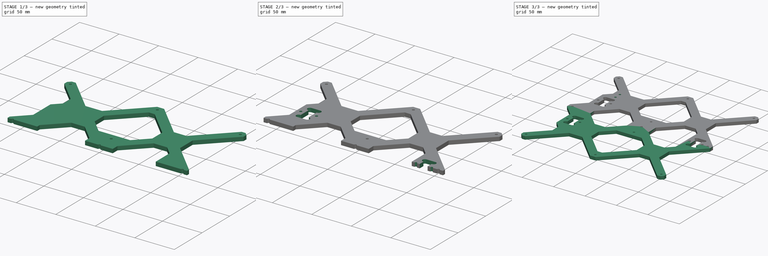
[diagram: build sequence overview — one tinted view per stage of 3, left to right]
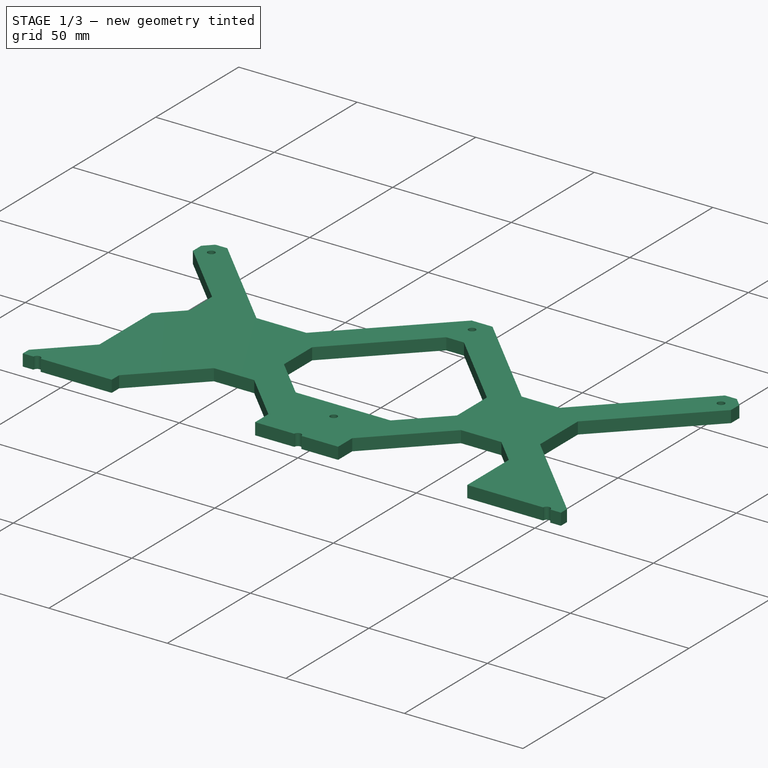
[diagram: stage 1 of 3 — iso view after this stage's code; geometry added in this stage tinted green]
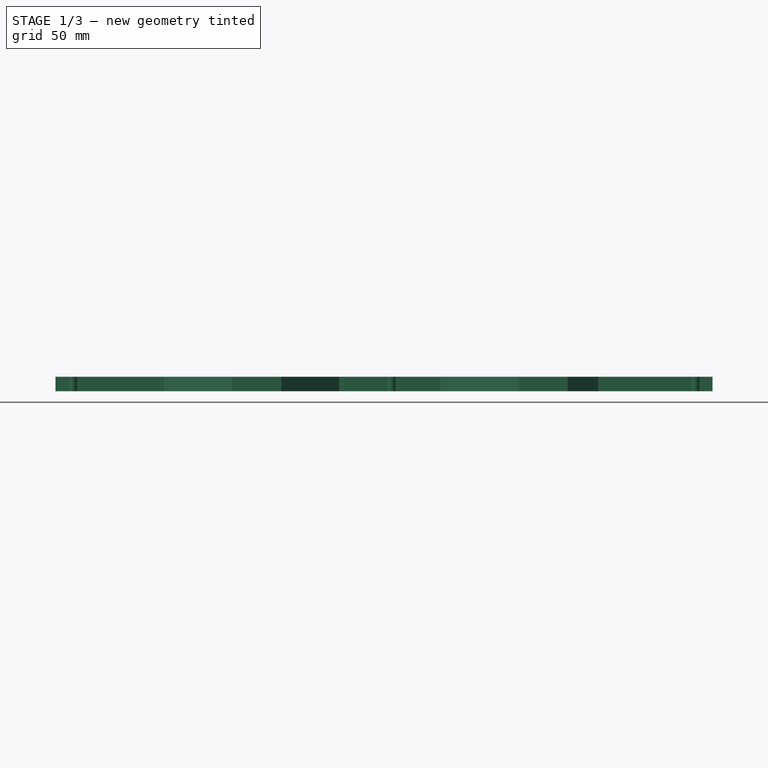
[diagram: stage 1 of 3 — front view after this stage's code; geometry added in this stage tinted green]
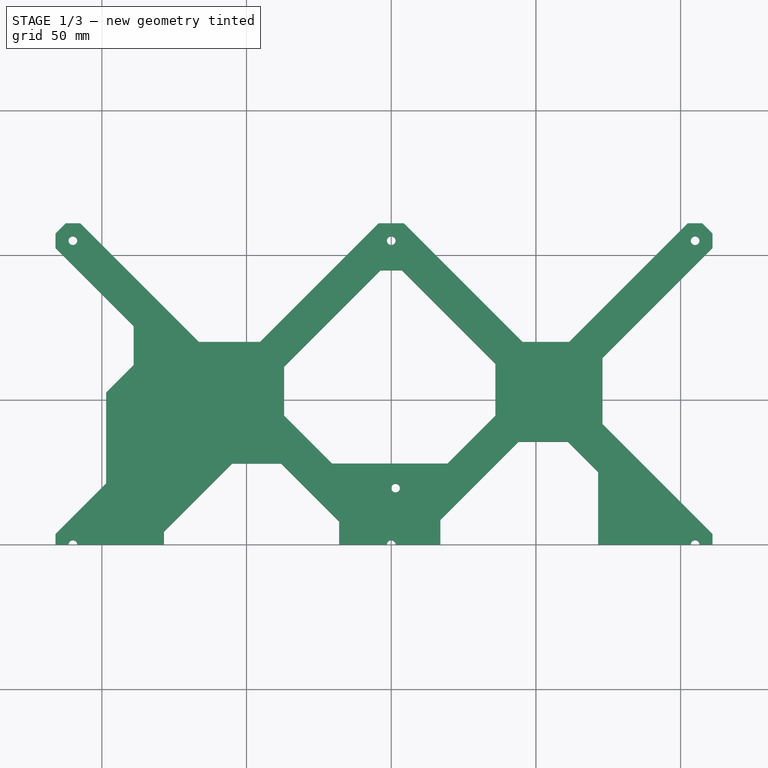
[diagram: stage 1 of 3 — top view after this stage's code; geometry added in this stage tinted green]
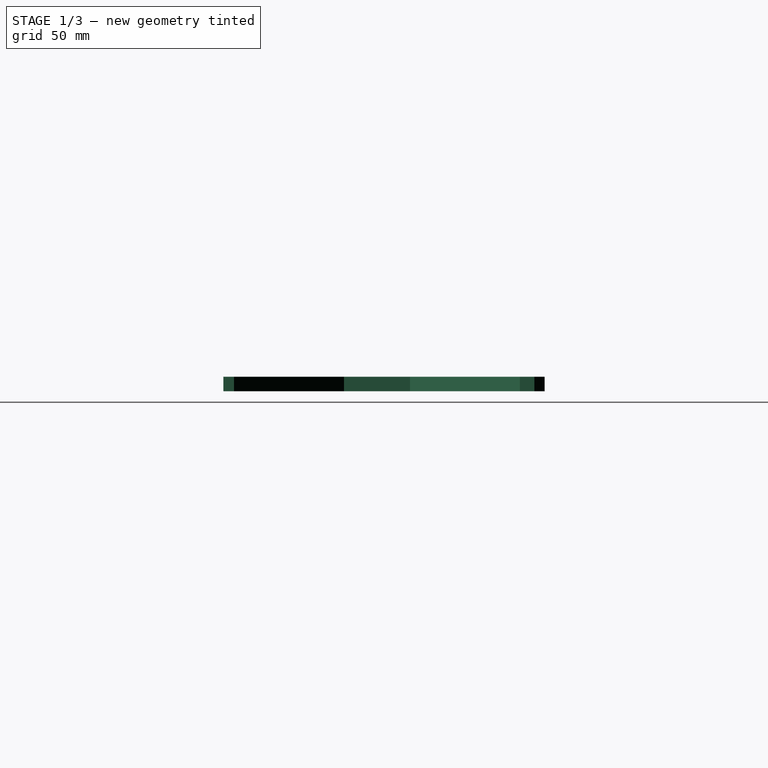
[diagram: stage 1 of 3 — right view after this stage's code; geometry added in this stage tinted green]
FCSTD DOCUMENT  (FreeCAD 0.21R33771 (Git))
Label: _MK3-Y-Carriage
License: Creative Commons Attribution 4.0
LicenseURL: https://creativecommons.org/licenses/by/4.0/
objects: Sketcher::SketchObject×4, PartDesign::Pocket×3, PartDesign::Pad×1, PartDesign::Mirrored×1, PartDesign::Body×1
note: 14 computed .brp shape members not serialized (recipe doc carries the construction recipe); baked Part::Feature solids carry a one-line shape summary decoded from their .brp

FEATURE [Sketcher::SketchObject] Sketch
  FullyConstrained = true
  MapMode = 5
  Support = -> [XY_Plane002]
  sketch-geometry (24):
    g0: LineSegment StartX=-116 StartY=0 StartZ=0 EndX=-116 EndY=3.66447 EndZ=0
    g1: LineSegment StartX=-116 StartY=3.66447 StartZ=0 EndX=-98.5 EndY=21.1645 EndZ=0
    g2: LineSegment StartX=-98.5 StartY=21.1645 StartZ=0 EndX=-98.5 EndY=52.5 EndZ=0
    g3: LineSegment StartX=-98.5 StartY=52.5 StartZ=0 EndX=-89 EndY=62 EndZ=0
    g4: LineSegment StartX=-89 StartY=62 StartZ=0 EndX=-89 EndY=75.4645 EndZ=0
    g5: LineSegment StartX=-89 StartY=75.4645 StartZ=0 EndX=-116 EndY=102.464 EndZ=0
    g6: LineSegment StartX=-116 StartY=102.464 StartZ=0 EndX=-116 EndY=107.464 EndZ=0
    g7: LineSegment StartX=-116 StartY=107.464 StartZ=0 EndX=-112.464 EndY=111 EndZ=0
    g8: LineSegment StartX=-112.464 StartY=111 StartZ=0 EndX=-107.464 EndY=111 EndZ=0
    g9: LineSegment StartX=-107.464 StartY=111 StartZ=0 EndX=-66.4645 EndY=70 EndZ=0
    g10: LineSegment StartX=-66.4645 StartY=70 StartZ=0 EndX=-45.4 EndY=70 EndZ=0
    g11: LineSegment StartX=-45.4 StartY=70 StartZ=0 EndX=-4.4 EndY=111 EndZ=0
    g12: LineSegment StartX=-4.4 StartY=111 StartZ=0 EndX=4.4 EndY=111 EndZ=0
    g13: LineSegment StartX=4.4 StartY=111 StartZ=0 EndX=45.4 EndY=70 EndZ=0
    g14: LineSegment StartX=45.4 StartY=70 StartZ=0 EndX=61.4645 EndY=70 EndZ=0
    g15: LineSegment StartX=61.4645 StartY=70 StartZ=0 EndX=102.464 EndY=111 EndZ=0
    g16: LineSegment StartX=102.464 StartY=111 StartZ=0 EndX=107.464 EndY=111 EndZ=0
    g17: LineSegment StartX=107.464 StartY=111 StartZ=0 EndX=111 EndY=107.464 EndZ=0
    g18: LineSegment StartX=111 StartY=107.464 StartZ=0 EndX=111 EndY=102.464 EndZ=0
    g19: LineSegment StartX=111 StartY=102.464 StartZ=0 EndX=73 EndY=64.4645 EndZ=0
    g20: LineSegment StartX=73 StartY=64.4645 StartZ=0 EndX=73 EndY=41.6645 EndZ=0
    g21: LineSegment StartX=73 StartY=41.6645 StartZ=0 EndX=111 EndY=3.66447 EndZ=0
    g22: LineSegment StartX=111 StartY=3.66447 StartZ=0 EndX=111 EndY=0 EndZ=0
    g23: LineSegment StartX=111 StartY=0 StartZ=0 EndX=-116 EndY=0 EndZ=0
  constraints (71):
    c: PointOnObject(g0,g-1)
    c: Vertical(g0)
    c: Coincident(g0,g1)
    c: Coincident(g1,g2)
    c: Vertical(g2)
    c: Coincident(g2,g3)
    c: Coincident(g3,g4)
    c: Vertical(g4)
    c: Coincident(g4,g5)
    c: Coincident(g5,g6)
    c: Vertical(g6)
    c: Coincident(g6,g7)
    c: Coincident(g7,g8)
    c: Horizontal(g8)
    c: Coincident(g8,g9)
    c: Coincident(g9,g10)
    c: Horizontal(g10)
    c: Coincident(g10,g11)
    c: Coincident(g11,g12)
    c: Coincident(g12,g13)
    c: Coincident(g13,g14)
    c: Coincident(g14,g15)
    c: Coincident(g15,g16)
    c: Horizontal(g16)
    c: Coincident(g16,g17)
    c: Coincident(g17,g18)
    c: Vertical(g18)
    c: Coincident(g18,g19)
    c: Coincident(g19,g20)
    c: Vertical(g20)
    c: Coincident(g20,g21)
    c: Coincident(g21,g22)
    c: PointOnObject(g22,g-1)
    c: Vertical(g22)
    c: Coincident(g23,g0)
    c: DistanceY(g-1,g7) = 111
    c: Vertical(g0,g5)
    c: DistanceX(g6,g-1) = 116
    c: Angle(g7,g8) = 2.35619
    c: Horizontal(g8,g11)
    c: Horizontal(g12,g15)
    c: Symmetric(g11,g12,g-2)
    c: DistanceX(g12,g12) = 8.8
    c: Distance(g7) = 5
    c: Equal(g7,g6)
    c: Equal(g6,g8)
    c: Perpendicular(g9,g7)
    c: Parallel(g9,g5)
    c: DistanceY(g-1,g9) = 70
    c: DistanceX(g4,g-1) = 89
    c: Perpendicular(g1,g5)
    c: DistanceX(g1,g-1) = 98.5
    c: DistanceX(g-1,g17) = 111
    c: Vertical(g18,g21)
    c: Coincident(g23,g22)
    c: Perpendicular(g11,g9)
    c: Perpendicular(g13,g11)
    c: Horizontal(g14)
    c: Horizontal(g10,g13)
    c: Perpendicular(g15,g13)
    c: Perpendicular(g17,g15)
    c: Equal(g17,g7)
    c: Equal(g17,g18)
    c: Equal(g18,g16)
    c: Parallel(g15,g19)
    c: DistanceX(g-1,g20) = 73
    c: Perpendicular(g21,g19)
    c: DistanceY(g20,g20) = 22.8
    c: Horizontal(g21,g0)
    c: Perpendicular(g3,g5)
    c: DistanceY(g-1,g2) = 52.5
FEATURE [PartDesign::Pad] Pad
  Direction = (0,0,1)
  Length = 5
  Length2 = 10
  Profile = -> Sketch
  ReferenceAxis = -> Sketch [N_Axis]
  Refine = true
  Type = 0
FEATURE [Sketcher::SketchObject] Sketch001
  AttachmentOffset = pos=(0,0,5) rot=(0,0,1;0rad)
  FullyConstrained = true
  MapMode = 5
  Placement = pos=(0,0,5) rot=(0,0,1;0rad)
  Support = -> [XY_Plane002]
  expr: .AttachmentOffset.Base.z = Pad.Length
  sketch-geometry (27):
    g0: LineSegment StartX=-78.5 StartY=0 StartZ=0 EndX=-78.5 EndY=4.5 EndZ=0
    g1: LineSegment StartX=-78.5 StartY=4.5 StartZ=0 EndX=-55 EndY=28 EndZ=0
    g2: LineSegment StartX=-55 StartY=28 StartZ=0 EndX=-38 EndY=28 EndZ=0
    g3: LineSegment StartX=-38 StartY=28 StartZ=0 EndX=-18 EndY=8 EndZ=0
    g4: LineSegment StartX=-18 StartY=8 StartZ=0 EndX=-18 EndY=0 EndZ=0
    g5: LineSegment StartX=-18 StartY=0 StartZ=0 EndX=-78.5 EndY=0 EndZ=0
    g6: LineSegment StartX=17 StartY=0 StartZ=0 EndX=17 EndY=8.5 EndZ=0
    g7: LineSegment StartX=17 StartY=8.5 StartZ=0 EndX=44 EndY=35.5 EndZ=0
    g8: LineSegment StartX=44 StartY=35.5 StartZ=0 EndX=61 EndY=35.5 EndZ=0
    g9: LineSegment StartX=61 StartY=35.5 StartZ=0 EndX=71.5 EndY=25 EndZ=0
    g10: LineSegment StartX=71.5 StartY=25 StartZ=0 EndX=71.5 EndY=0 EndZ=0
    g11: LineSegment StartX=71.5 StartY=0 StartZ=0 EndX=17 EndY=0 EndZ=0
    g12: LineSegment StartX=-3.75 StartY=94.75 StartZ=0 EndX=3.75 EndY=94.75 EndZ=0
    g13: LineSegment StartX=3.75 StartY=94.75 StartZ=0 EndX=36 EndY=62.5 EndZ=0
    g14: LineSegment StartX=36 StartY=62.5 StartZ=0 EndX=36 EndY=44.5 EndZ=0
    g15: LineSegment StartX=36 StartY=44.5 StartZ=0 EndX=19.5 EndY=28 EndZ=0
    g16: LineSegment StartX=19.5 StartY=28 StartZ=0 EndX=-20.5 EndY=28 EndZ=0
    g17: LineSegment StartX=-20.5 StartY=28 StartZ=0 EndX=-37 EndY=44.5 EndZ=0
    g18: LineSegment StartX=-37 StartY=44.5 StartZ=0 EndX=-37 EndY=61.5 EndZ=0
    g19: LineSegment StartX=-37 StartY=61.5 StartZ=0 EndX=-3.75 EndY=94.75 EndZ=0
    g20: Circle CenterX=-110 CenterY=0 CenterZ=0 NormalX=0 NormalY=0 NormalZ=1 AngleXU=0 Radius=1.5
    g21: Circle CenterX=-110 CenterY=105 CenterZ=0 NormalX=0 NormalY=0 NormalZ=1 AngleXU=0 Radius=1.5
    g22: Circle CenterX=0 CenterY=105 CenterZ=0 NormalX=0 NormalY=0 NormalZ=1 AngleXU=0 Radius=1.5
    g23: Circle CenterX=105 CenterY=105 CenterZ=0 NormalX=0 NormalY=0 NormalZ=1 AngleXU=0 Radius=1.5
    g24: Circle CenterX=105 CenterY=0 CenterZ=0 NormalX=0 NormalY=0 NormalZ=1 AngleXU=0 Radius=1.5
    g25: Circle CenterX=0 CenterY=0 CenterZ=0 NormalX=0 NormalY=0 NormalZ=1 AngleXU=0 Radius=1.5
    g26: Circle CenterX=1.5 CenterY=19.5 CenterZ=0 NormalX=0 NormalY=0 NormalZ=1 AngleXU=0 Radius=1.5
  constraints (79):
    c: PointOnObject(g0,g-1)
    c: Vertical(g0)
    c: Coincident(g0,g1)
    c: Coincident(g1,g2)
    c: Horizontal(g2)
    c: Coincident(g2,g3)
    c: Coincident(g3,g4)
    c: PointOnObject(g4,g-1)
    c: Vertical(g4)
    c: Coincident(g4,g5)
    c: Coincident(g5,g0)
    c: DistanceX(g4,g-1) = 18
    c: DistanceX(g5,g5) = 60.5
    c: DistanceY(g4,g2) = 28
    c: DistanceY(g4,g4) = 8
    c: Angle(g3,g4) = 2.35619
    c: Perpendicular(g1,g3)
    c: DistanceY(g0,g0) = 4.5
    c: PointOnObject(g6,g-1)
    c: Vertical(g6)
    c: Coincident(g6,g7)
    c: Coincident(g7,g8)
    c: Horizontal(g8)
    c: Coincident(g8,g9)
    c: Coincident(g9,g10)
    c: PointOnObject(g10,g-1)
    c: Vertical(g10)
    c: Coincident(g10,g11)
    c: Coincident(g11,g6)
    c: DistanceX(g-1,g6) = 17
    c: DistanceX(g11,g11) = 54.5
    c: DistanceY(g10,g8) = 35.5
    c: Angle(g9,g10) = 2.35619
    c: Perpendicular(g7,g9)
    c: DistanceY(g10,g10) = 25
    c: DistanceY(g6,g6) = 8.5
    c: Coincident(g12,g13)
    c: Coincident(g13,g14)
    c: Vertical(g14)
    c: Coincident(g14,g15)
    c: Coincident(g15,g16)
    c: Horizontal(g16)
    c: Coincident(g16,g17)
    c: Coincident(g17,g18)
    c: Vertical(g18)
    c: Coincident(g18,g19)
    c: Coincident(g19,g12)
    c: DistanceY(g-1,g16) = 28
    c: DistanceX(g17,g-1) = 37
    c: DistanceX(g-1,g14) = 36
    c: Symmetric(g12,g12,g-2)
    c: DistanceY(g15,g12) = 66.75
    c: DistanceX(g16,g-1) = 20.5
    c: DistanceX(g-1,g15) = 19.5
    c: Angle(g15,g16) = 2.35619
    c: Perpendicular(g13,g15)
    c: Perpendicular(g19,g13)
    c: Perpendicular(g17,g19)
    c: DistanceY(g14,g14) = 18
    c: Horizontal(g23,g22)
    c: Horizontal(g22,g21)
    c: Vertical(g23,g24)
    c: Coincident(g25,g-1)
    c: PointOnObject(g22,g-2)
    c: Vertical(g20,g21)
    c: Equal(g21,g22)
    c: Equal(g21,g23)
    c: Equal(g21,g24)
    c: Equal(g21,g26)
    c: Equal(g21,g25)
    c: Equal(g21,g20)
    c: Diameter(g21) = 3
    c: DistanceX(g21,g-1) = 110
    c: DistanceX(g-1,g23) = 105
    c: PointOnObject(g20,g-1)
    c: PointOnObject(g24,g-1)
    c: DistanceY(g-1,g23) = 105
    c: DistanceX(g25,g26) = 1.5
    c: DistanceY(g25,g26) = 19.5
FEATURE [PartDesign::Pocket] Pocket
  BaseFeature = -> Pad
  Direction = (0,0,-1)
  Length = 5
  Length2 = 5
  Profile = -> Sketch001
  ReferenceAxis = -> Sketch001 [N_Axis]
  Refine = true
  Type = 0
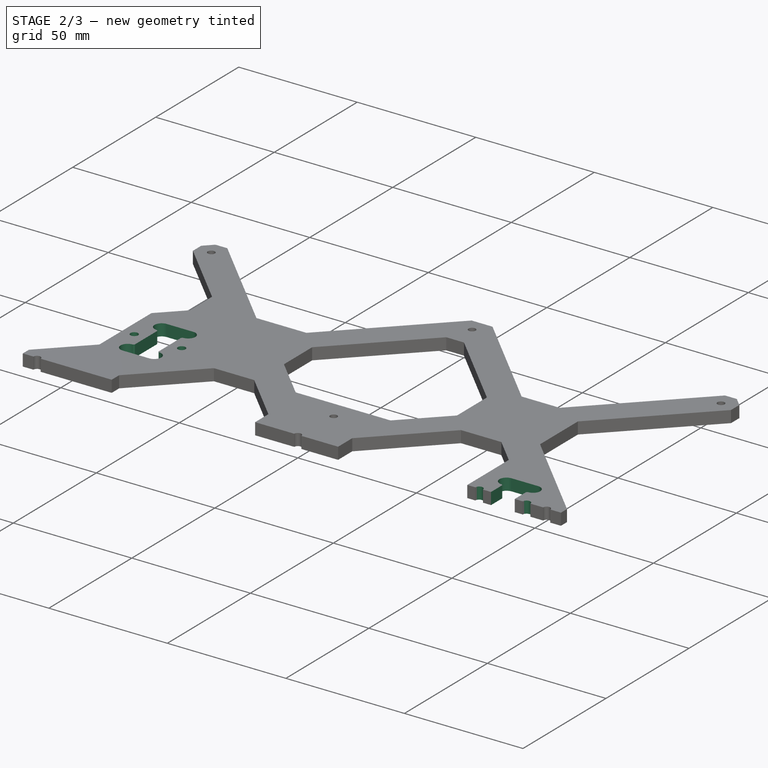
[diagram: stage 2 of 3 — iso view after this stage's code; geometry added in this stage tinted green]
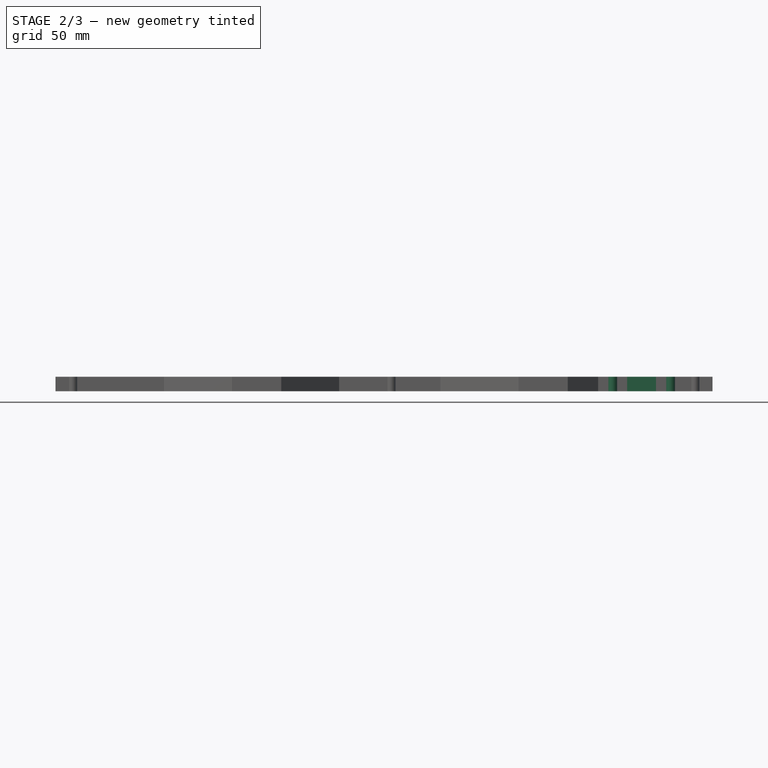
[diagram: stage 2 of 3 — front view after this stage's code; geometry added in this stage tinted green]
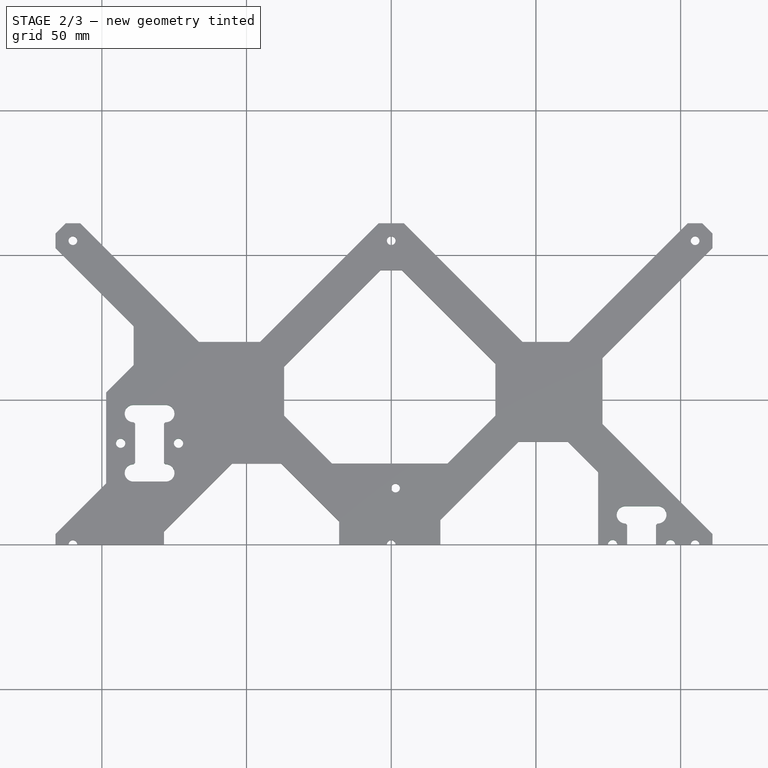
[diagram: stage 2 of 3 — top view after this stage's code; geometry added in this stage tinted green]
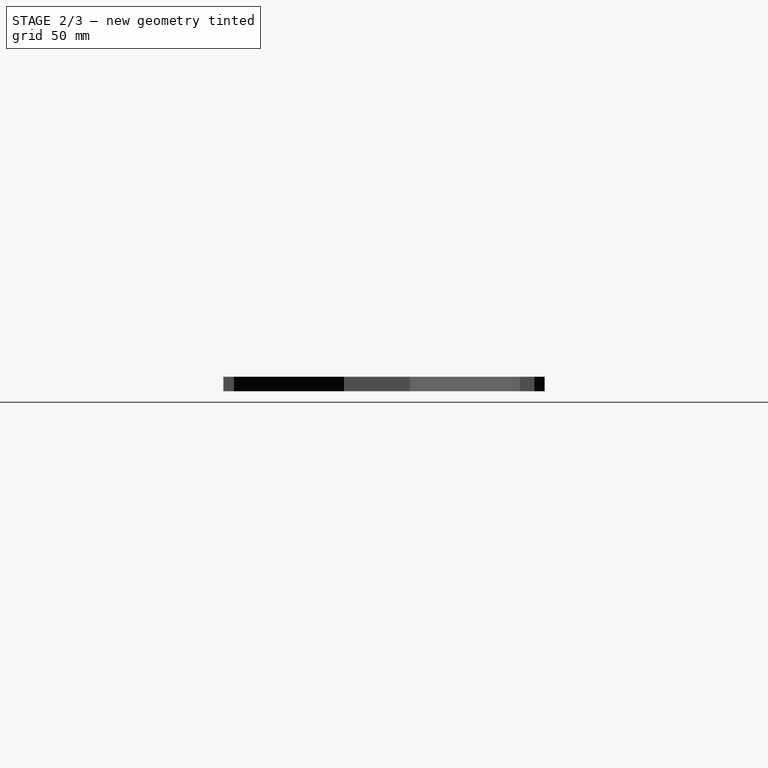
[diagram: stage 2 of 3 — right view after this stage's code; geometry added in this stage tinted green]
FEATURE [Sketcher::SketchObject] Sketch002
  AttachmentOffset = pos=(0,0,5) rot=(0,0,1;0rad)
  FullyConstrained = true
  MapMode = 5
  Placement = pos=(0,0,5) rot=(0,0,1;0rad)
  Support = -> [XY_Plane002]
  expr: .AttachmentOffset.Base.z = Pad.Length
  sketch-geometry (32):
    g0: ArcOfCircle CenterX=-89.1 CenterY=45.25 CenterZ=0 NormalX=0 NormalY=0 NormalZ=1 AngleXU=0 Radius=3 StartAngle=1.5708 EndAngle=4.71239
    g1: ArcOfCircle CenterX=-77.9 CenterY=45.25 CenterZ=0 NormalX=0 NormalY=0 NormalZ=1 AngleXU=0 Radius=3 StartAngle=4.71239 EndAngle=7.85398
    g2: LineSegment StartX=-89.1 StartY=42.25 StartZ=0 EndX=-89 EndY=42.25 EndZ=0
    g3: LineSegment StartX=-77.9 StartY=48.25 StartZ=0 EndX=-89.1 EndY=48.25 EndZ=0
    g4: ArcOfCircle CenterX=-89.1 CenterY=24.75 CenterZ=0 NormalX=0 NormalY=0 NormalZ=1 AngleXU=0 Radius=3 StartAngle=1.5708 EndAngle=4.71239
    g5: ArcOfCircle CenterX=-77.9 CenterY=24.75 CenterZ=0 NormalX=0 NormalY=0 NormalZ=1 AngleXU=0 Radius=3 StartAngle=4.71239 EndAngle=7.85398
    g6: LineSegment StartX=-89.1 StartY=21.75 StartZ=0 EndX=-77.9 EndY=21.75 EndZ=0
    g7: LineSegment StartX=-77.9 StartY=27.75 StartZ=0 EndX=-78 EndY=27.75 EndZ=0
    g8: LineSegment StartX=-89 StartY=42.25 StartZ=0 EndX=-88.5 EndY=41.75 EndZ=0
    g9: LineSegment StartX=-88.5 StartY=41.75 StartZ=0 EndX=-88.5 EndY=28.25 EndZ=0
    g10: LineSegment StartX=-88.5 StartY=28.25 StartZ=0 EndX=-89 EndY=27.75 EndZ=0
    g11: LineSegment StartX=-78 StartY=27.75 StartZ=0 EndX=-78.5 EndY=28.25 EndZ=0
    g12: LineSegment StartX=-78.5 StartY=28.25 StartZ=0 EndX=-78.5 EndY=41.75 EndZ=0
    g13: LineSegment StartX=-78.5 StartY=41.75 StartZ=0 EndX=-78 EndY=42.25 EndZ=0
    g14: LineSegment StartX=-83.5 StartY=45.25 StartZ=0 EndX=-83.5 EndY=24.75 EndZ=0
    g15: LineSegment StartX=-78 StartY=42.25 StartZ=0 EndX=-77.9 EndY=42.25 EndZ=0
    g16: LineSegment StartX=-89 StartY=27.75 StartZ=0 EndX=-89.1 EndY=27.75 EndZ=0
    g17: Circle CenterX=-93.5 CenterY=35 CenterZ=0 NormalX=0 NormalY=0 NormalZ=1 AngleXU=0 Radius=1.6
    g18: Circle CenterX=-73.5 CenterY=35 CenterZ=0 NormalX=0 NormalY=0 NormalZ=1 AngleXU=0 Radius=1.6
    g19: ArcOfCircle CenterX=80.9 CenterY=10.25 CenterZ=0 NormalX=0 NormalY=0 NormalZ=1 AngleXU=0 Radius=3 StartAngle=1.5708 EndAngle=4.71239
    g20: ArcOfCircle CenterX=92.1 CenterY=10.25 CenterZ=0 NormalX=0 NormalY=0 NormalZ=1 AngleXU=0 Radius=3 StartAngle=4.71239 EndAngle=7.85398
    g21: LineSegment StartX=80.9 StartY=7.25 StartZ=0 EndX=81 EndY=7.25 EndZ=0
    g22: LineSegment StartX=92.1 StartY=13.25 StartZ=0 EndX=80.9 EndY=13.25 EndZ=0
    g23: LineSegment StartX=86.5 StartY=10.25 StartZ=0 EndX=86.5 EndY=0 EndZ=0
    g24: LineSegment StartX=81 StartY=7.25 StartZ=0 EndX=81.5 EndY=6.75 EndZ=0
    g25: LineSegment StartX=81.5 StartY=6.75 StartZ=0 EndX=81.5 EndY=0 EndZ=0
    g26: LineSegment StartX=81.5 StartY=0 StartZ=0 EndX=91.5 EndY=0 EndZ=0
    g27: LineSegment StartX=91.5 StartY=0 StartZ=0 EndX=91.5 EndY=6.75 EndZ=0
    g28: LineSegment StartX=91.5 StartY=6.75 StartZ=0 EndX=92 EndY=7.25 EndZ=0
    g29: LineSegment StartX=92 StartY=7.25 StartZ=0 EndX=92.1 EndY=7.25 EndZ=0
    g30: Circle CenterX=76.5 CenterY=0 CenterZ=0 NormalX=0 NormalY=0 NormalZ=1 AngleXU=0 Radius=1.6
    g31: Circle CenterX=96.5 CenterY=0 CenterZ=0 NormalX=0 NormalY=0 NormalZ=1 AngleXU=0 Radius=1.6
  constraints (87):
    c: Tangent(g0,g2) = -1.5708
    c: Coincident(g15,g1) = -1.5708
    c: Tangent(g1,g3) = -1.5708
    c: Tangent(g3,g0) = -1.5708
    c: Equal(g0,g1)
    c: Horizontal(g2)
    c: Tangent(g4,g6) = -1.5708
    c: Tangent(g6,g5) = -1.5708
    c: Tangent(g5,g7) = -1.5708
    c: Equal(g4,g5)
    c: Horizontal(g6)
    c: DistanceX(g0,g-1) = 89.1
    c: DistanceX(g3,g3) = 11.2
    c: Radius(g0) = 3
    c: DistanceY(g-1,g1) = 45.25
    c: Equal(g0,g4)
    c: Equal(g3,g6)
    c: DistanceY(g5,g1) = 20.5
    c: Vertical(g0,g4)
    c: Coincident(g8,g9)
    c: Vertical(g9)
    c: Coincident(g9,g10)
    c: Coincident(g11,g12)
    c: Vertical(g12)
    c: Coincident(g12,g13)
    c: PointOnObject(g13,g2)
    c: Equal(g10,g11)
    c: Perpendicular(g11,g10)
    c: Symmetric(g4,g5,g14)
    c: Symmetric(g0,g1,g14)
    c: Symmetric(g9,g11,g14)
    c: DistanceX(g9,g11) = 10
    c: DistanceY(g10,g9) = 0.5
    c: Perpendicular(g13,g11)
    c: Perpendicular(g8,g13)
    c: Equal(g11,g13)
    c: Equal(g13,g8)
    c: Coincident(g2,g8)
    c: Horizontal(g3)
    c: Coincident(g13,g15)
    c: Horizontal(g15)
    c: Coincident(g16,g10)
    c: Coincident(g7,g11)
    c: Horizontal(g16)
    c: Horizontal(g10,g7)
    c: Tangent(g16,g4) = -1.5708
    c: Symmetric(g18,g17,g14)
    c: DistanceX(g17,g18) = 20
    c: DistanceY(g5,g18) = 10.25
    c: Equal(g17,g18)
    c: Diameter(g17) = 3.2
    c: Tangent(g19,g21) = -1.5708
    c: Tangent(g20,g22) = -1.5708
    c: Tangent(g22,g19) = -1.5708
    c: Equal(g19,g20)
    c: Horizontal(g21)
    c: Equal(g6,g22)
    c: Equal(g5,g19)
    c: DistanceY(g-1,g20) = 10.25
    c: PointOnObject(g23,g-1)
    c: Vertical(g23)
    c: Symmetric(g19,g20,g23)
    c: DistanceX(g-1,g23) = 86.5
    c: Coincident(g24,g25)
    c: PointOnObject(g25,g-1)
    c: Vertical(g25)
    c: Coincident(g25,g26)
    c: PointOnObject(g26,g-1)
    c: Coincident(g26,g27)
    c: Vertical(g27)
    c: Coincident(g27,g28)
    c: PointOnObject(g28,g21)
    c: Symmetric(g24,g27,g23)
    c: Perpendicular(g28,g24)
    c: Equal(g28,g24)
    c: Equal(g24,g10)
    c: DistanceX(g26,g26) = 10
    c: Coincident(g21,g24)
    c: PointOnObject(g29,g28)
    c: Horizontal(g29)
    c: Tangent(g29,g20) = -1.5708
    c: Horizontal(g22)
    c: PointOnObject(g30,g-1)
    c: Symmetric(g30,g31,g23)
    c: Equal(g18,g30)
    c: Equal(g30,g31)
    c: DistanceX(g30,g31) = 20
FEATURE [PartDesign::Pocket] Pocket001
  BaseFeature = -> Pocket
  Direction = (0,0,-1)
  Length = 5
  Length2 = 5
  Profile = -> Sketch002
  ReferenceAxis = -> Sketch002 [N_Axis]
  Refine = true
  Type = 1
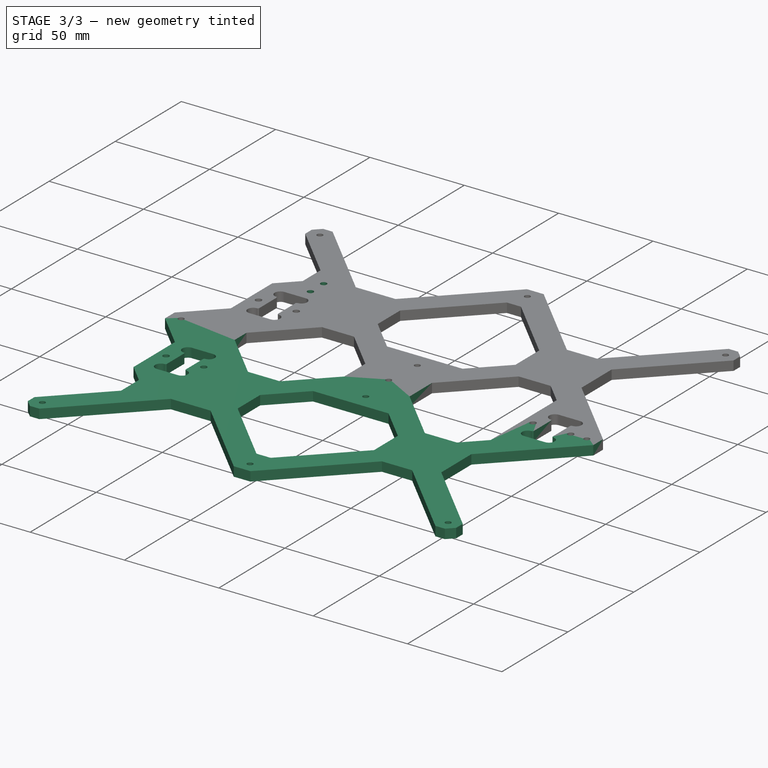
[diagram: stage 3 of 3 — iso view after this stage's code; geometry added in this stage tinted green]
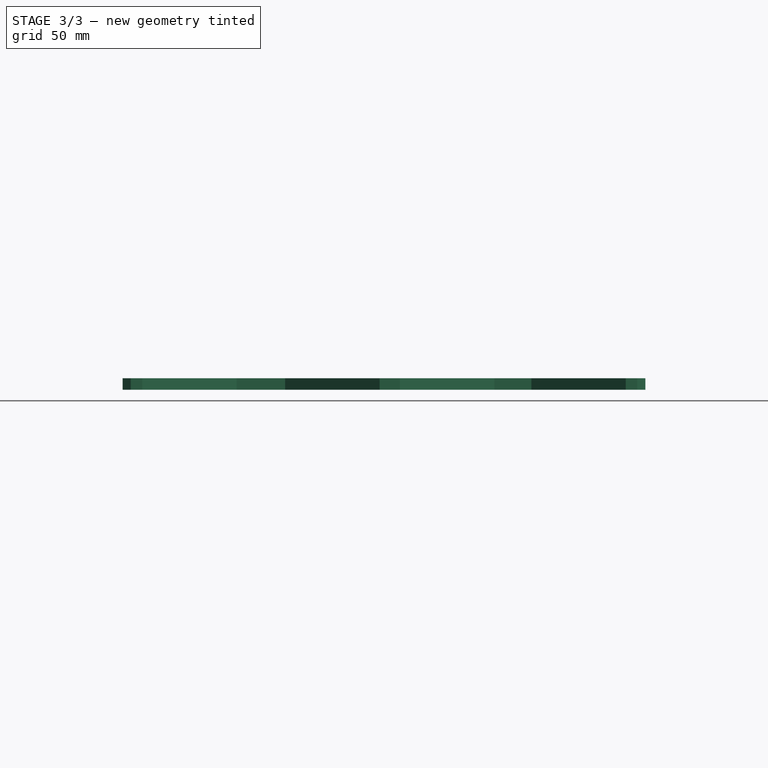
[diagram: stage 3 of 3 — front view after this stage's code; geometry added in this stage tinted green]
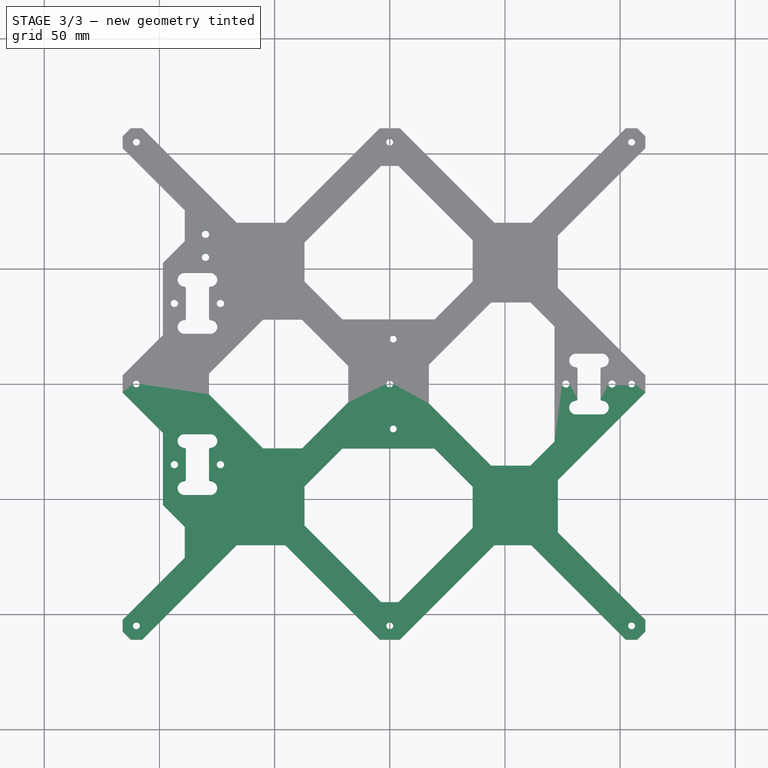
[diagram: stage 3 of 3 — top view after this stage's code; geometry added in this stage tinted green]
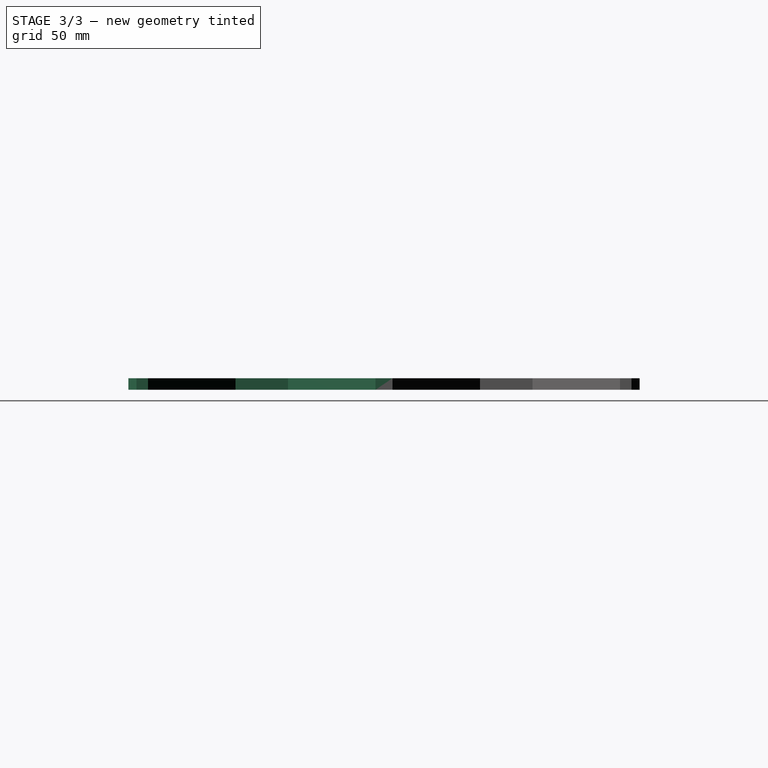
[diagram: stage 3 of 3 — right view after this stage's code; geometry added in this stage tinted green]
FEATURE [PartDesign::Mirrored] Mirrored
  BaseFeature = -> Pocket001
  MirrorPlane = -> Sketch [H_Axis]
  Originals = -> [Pad,Pocket,Pocket001]
  Refine = true
FEATURE [Sketcher::SketchObject] Sketch003
  AttachmentOffset = pos=(0,0,5) rot=(0,0,1;0rad)
  FullyConstrained = true
  MapMode = 5
  Placement = pos=(0,0,5) rot=(0,0,1;0rad)
  Support = -> [XY_Plane002]
  expr: .AttachmentOffset.Base.z = Pad.Length
  sketch-geometry (2):
    g0: Circle CenterX=-80 CenterY=65 CenterZ=0 NormalX=0 NormalY=0 NormalZ=1 AngleXU=0 Radius=1.6
    g1: Circle CenterX=-80 CenterY=55 CenterZ=0 NormalX=0 NormalY=0 NormalZ=1 AngleXU=0 Radius=1.6
  constraints (6):
    c: Vertical(g0,g1)
    c: DistanceY(g1,g0) = 10
    c: DistanceX(g1,g-1) = 80
    c: DistanceY(g-1,g1) = 55
    c: Equal(g0,g1)
    c: Diameter(g0) = 3.2
FEATURE [PartDesign::Pocket] Pocket002
  BaseFeature = -> Mirrored
  Direction = (0,0,-1)
  Length = 5
  Length2 = 5
  Profile = -> Sketch003
  ReferenceAxis = -> Sketch003 [N_Axis]
  Refine = true
  Type = 1
FEATURE [PartDesign::Body] Body  label="Y-Carriage"
  Group = -> [Sketch,Pad,Sketch001,Pocket,Sketch002,Pocket001,Mirrored,Sketch003,Pocket002]
  Origin = -> Origin002
  Tip = -> Pocket002
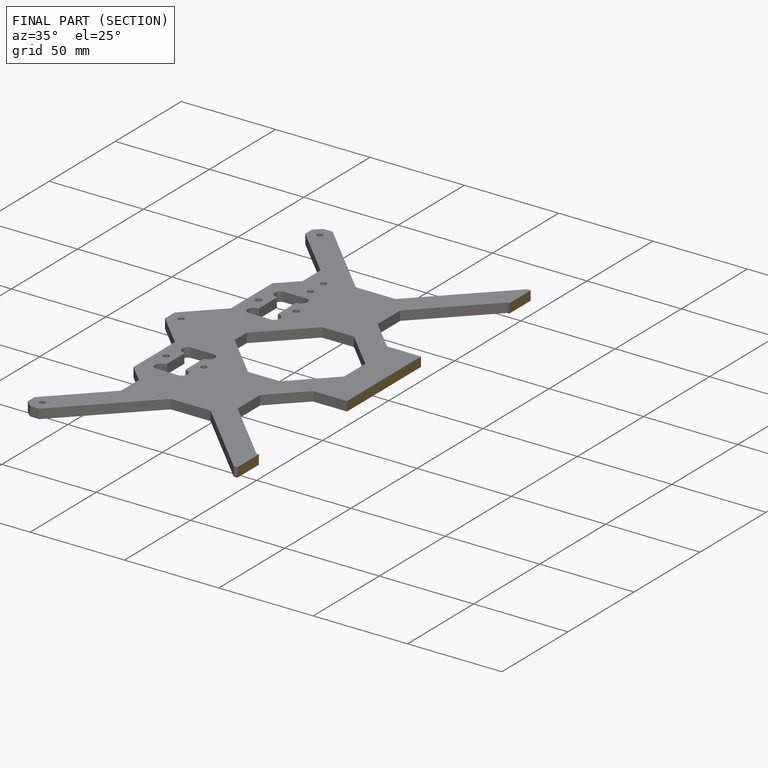
[diagram: finished part — half-section view (interior)]
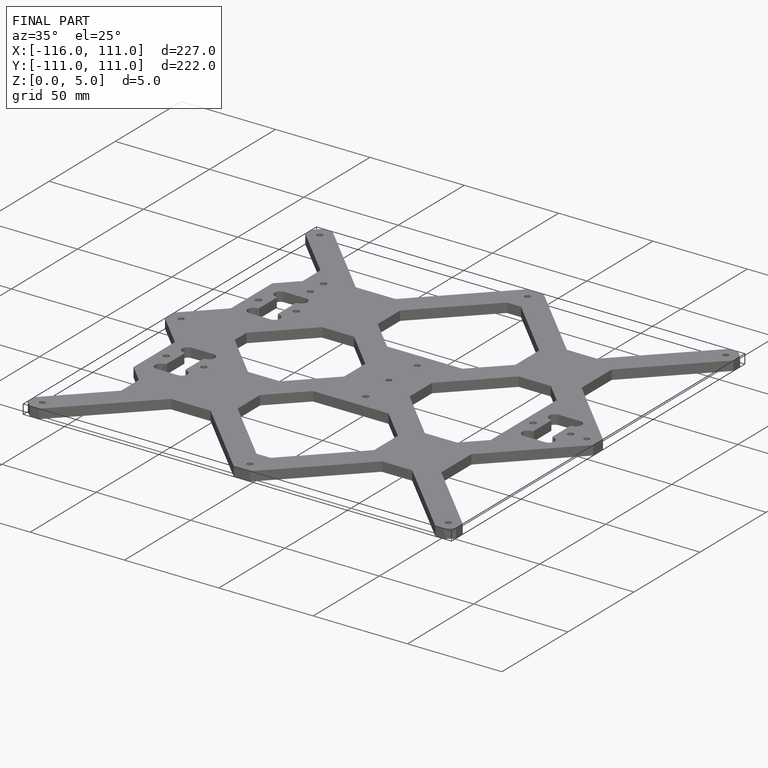
[diagram: finished part — iso view with bounding-box wireframe]
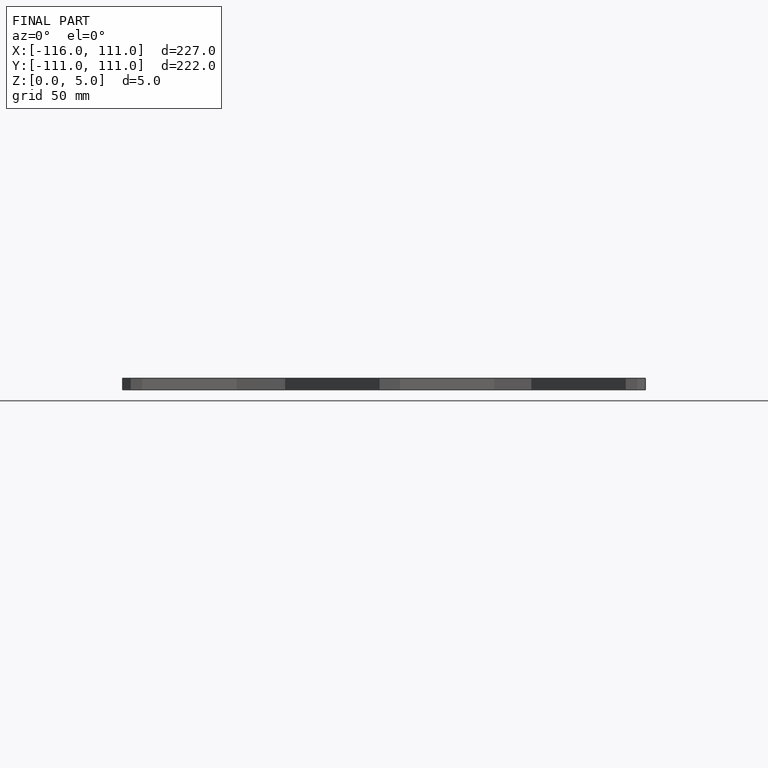
[diagram: finished part — front view with bounding-box wireframe]
